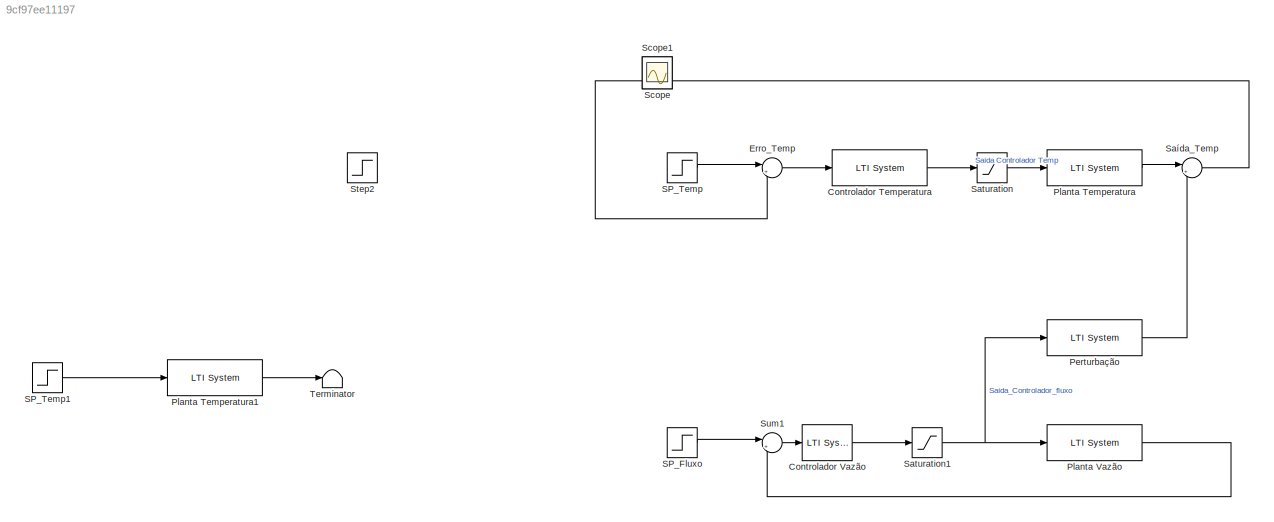
MODEL slx_9cf97ee11197
KIND model
CONFIG AbsTol = auto
CONFIG EnableMultiTasking = off
CONFIG FixedStep = auto
CONFIG MaxStep = auto
CONFIG MinStep = auto
CONFIG RelTol = 1e-3
CONFIG SampleTimeConstraint = Unconstrained
CONFIG SolverName = VariableStepAuto
CONFIG StartTime = 0.0
CONFIG StopTime = 5500
BLOCK [Reference] Controlador Temperatura  REF=cstblocks/LTI System
  Ports = [1, 1]
  SourceBlock = cstblocks/LTI System
  SourceProductBaseCode = CT
  SourceType = LTI Block
BLOCK [Reference] Controlador Vazão  REF=cstblocks/LTI System
  Ports = [1, 1]
  SourceBlock = cstblocks/LTI System
  SourceProductBaseCode = CT
  SourceType = LTI Block
BLOCK [Sum] Erro_Temp
  Inputs = |+-
  NameLocation = top
  Ports = [2, 1]
BLOCK [Reference] Perturbação  REF=cstblocks/LTI System
  Ports = [1, 1]
  SourceBlock = cstblocks/LTI System
  SourceProductBaseCode = CT
  SourceType = LTI Block
BLOCK [Reference] Planta Temperatura  REF=cstblocks/LTI System
  Ports = [1, 1]
  SourceBlock = cstblocks/LTI System
  SourceProductBaseCode = CT
  SourceType = LTI Block
BLOCK [Reference] Planta Temperatura1  REF=cstblocks/LTI System
  Ports = [1, 1]
  SourceBlock = cstblocks/LTI System
  SourceProductBaseCode = CT
  SourceType = LTI Block
BLOCK [Reference] Planta Vazão  REF=cstblocks/LTI System
  Ports = [1, 1]
  SourceBlock = cstblocks/LTI System
  SourceProductBaseCode = CT
  SourceType = LTI Block
BLOCK [Step] SP_Fluxo
  After = 8
  SampleTime = 0
  Time = 2000
BLOCK [Step] SP_Temp
  After = 46.05-26.05
  SampleTime = 0
  Time = 0
BLOCK [Step] SP_Temp1
  After = 61.17
  SampleTime = 0
  Time = 0
BLOCK [Saturate] Saturation
  LowerLimit = 0
  UpperLimit = 255
BLOCK [Saturate] Saturation1
  LowerLimit = 0
  UpperLimit = 255
BLOCK [Sum] Saída_Temp
  Inputs = |++
  Ports = [2, 1]
BLOCK [Scope] Scope
  Floating = off
  IOType = viewer
  NumInputPorts = 1
  Ports = []
  ScopeSpecificationString = Simulink.scopes.TimeScopeBlockCfg('CurrentConfiguration', extmgr.ConfigurationSet(extmgr.Configuration('Core','General UI',true,'FigureColor',[1 1 1]),extmgr.Configuration('Core','Source UI',true),extmgr.Configuration('Sources','WiredSimulink',true),extmgr.Configuration('Visuals','Time Domain',true,'SerializedDisplays',{struct('MinYLimReal','-40.51591','MaxYLimReal','36.45622','YLabelReal','','Min...<+1980ch>
BLOCK [Scope] Scope1
  Floating = off
  IOType = viewer
  NumInputPorts = 1
  Ports = []
  ScopeSpecificationString = Simulink.scopes.TimeScopeBlockCfg('CurrentConfiguration', extmgr.ConfigurationSet(extmgr.Configuration('Core','General UI',true),extmgr.Configuration('Core','Source UI',true),extmgr.Configuration('Sources','WiredSimulink',true,'DataLoggingVariableName','ScopeData1'),extmgr.Configuration('Visuals','Time Domain',true,'SerializedDisplays',{struct('MinYLimReal','-3.02555','MaxYLimReal','11.78788','YLa...<+1716ch>
BLOCK [Step] Step2
  After = -5
  SampleTime = 0
  Time = 4100
BLOCK [Sum] Sum1
  Inputs = |+-
  Ports = [2, 1]
BLOCK [Terminator] Terminator
LINE Controlador Temperatura:1 -> Saturation:1
LINE Controlador Vazão:1 -> Saturation1:1
LINE Erro_Temp:1 -> Controlador Temperatura:1
LINE Perturbação:1 -> Saída_Temp:2
LINE Planta Temperatura1:1 -> Terminator:1
LINE Planta Temperatura:1 -> Saída_Temp:1
LINE Planta Vazão:1 -> Sum1:2
LINE SP_Fluxo:1 -> Sum1:1
LINE SP_Temp1:1 -> Planta Temperatura1:1
LINE SP_Temp:1 -> Erro_Temp:1
NET Saturation1:1 -> Perturbação:1, Planta Vazão:1
LINE Saturation:1 -> Planta Temperatura:1
LINE Saída_Temp:1 -> Erro_Temp:2
LINE Sum1:1 -> Controlador Vazão:1
note: NET lines group one-source signal fan-out (src -> all destinations, sorted); 1:1 wires keep LINE
